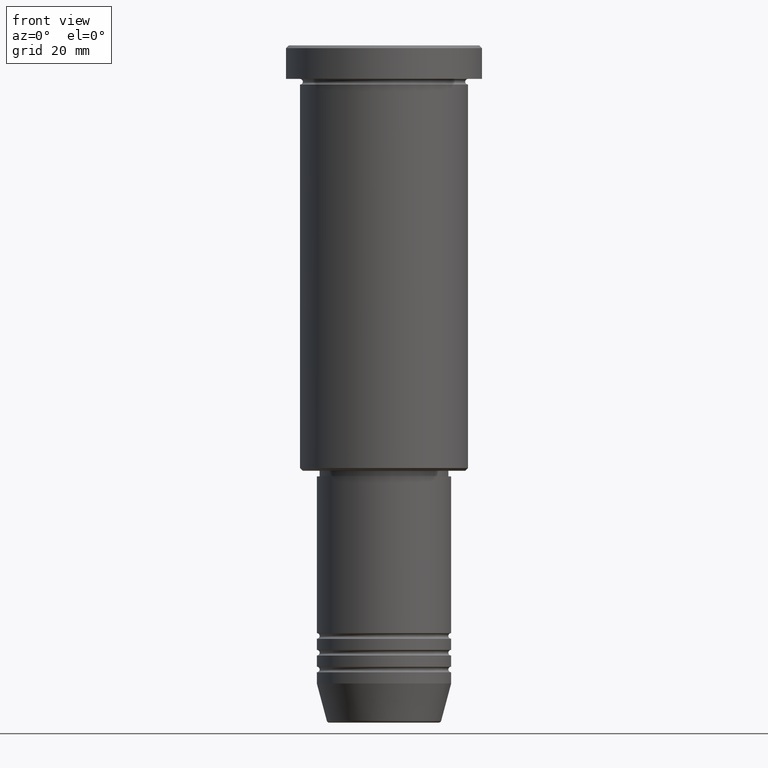
[diagram: clean part render]
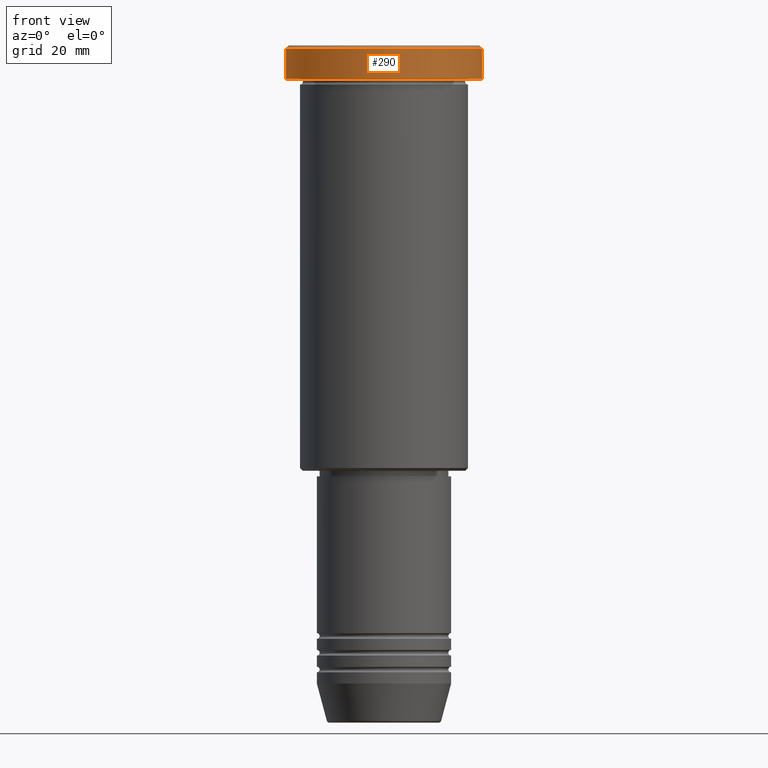
[diagram: same view with one face highlighted and labeled with its STEP entity id]
A machine part, front view. The second image highlights one B-rep face of the part: STEP entity #290.
In plain terms, the highlighted cylindrical surface (partial cylindrical patch) has radius 17.5 mm, axis along (-0, -0, 1).
Its self-contained STEP definition (entity closure, byte-faithful):
#61 = ORIENTED_EDGE ( 'NONE', *, *, #350, .T. ) ;
#64 = DIRECTION ( 'NONE',  ( -0.000000000000000000, -0.000000000000000000, 1.000000000000000000 ) ) ;
#72 = LINE ( 'NONE', #726, #657 ) ;
#95 = EDGE_CURVE ( 'NONE', #514, #590, #264, .T. ) ;
#114 = AXIS2_PLACEMENT_3D ( 'NONE', #405, #771, #1046 ) ;
#130 = CARTESIAN_POINT ( 'NONE',  ( -17.50000000000000000, 2.143131898507868248E-15, -5.999999999999995559 ) ) ;
#154 = CARTESIAN_POINT ( 'NONE',  ( 17.50000000000000000, 0.000000000000000000, -0.4999999999999864553 ) ) ;
#155 = CARTESIAN_POINT ( 'NONE',  ( 17.50000000000000000, 0.000000000000000000, 0.000000000000000000 ) ) ;
#224 = LINE ( 'NONE', #155, #594 ) ;
#264 = CIRCLE ( 'NONE', #1160, 17.50000000000000000 ) ;
#284 = ORIENTED_EDGE ( 'NONE', *, *, #934, .T. ) ;
#290 = ADVANCED_FACE ( 'NONE', ( #402 ), #300, .T. ) ;
#300 = CYLINDRICAL_SURFACE ( 'NONE', #988, 17.50000000000000000 ) ;
#337 = DIRECTION ( 'NONE',  ( 1.000000000000000000, 0.000000000000000000, 0.000000000000000000 ) ) ;
#350 = EDGE_CURVE ( 'NONE', #604, #632, #888, .T. ) ;
#402 = FACE_OUTER_BOUND ( 'NONE', #622, .T. ) ;
#405 = CARTESIAN_POINT ( 'NONE',  ( 0.000000000000000000, 0.000000000000000000, -0.4999999999999864553 ) ) ;
#483 = DIRECTION ( 'NONE',  ( 1.000000000000000000, 0.000000000000000000, 0.000000000000000000 ) ) ;
#500 = DIRECTION ( 'NONE',  ( -0.000000000000000000, -0.000000000000000000, 1.000000000000000000 ) ) ;
#514 = VERTEX_POINT ( 'NONE', #130 ) ;
#552 = ORIENTED_EDGE ( 'NONE', *, *, #95, .T. ) ;
#590 = VERTEX_POINT ( 'NONE', #1161 ) ;
#594 = VECTOR ( 'NONE', #64, 1000.000000000000000 ) ;
#604 = VERTEX_POINT ( 'NONE', #154 ) ;
#622 = EDGE_LOOP ( 'NONE', ( #1096, #552, #284, #61 ) ) ;
#632 = VERTEX_POINT ( 'NONE', #952 ) ;
#657 = VECTOR ( 'NONE', #1006, 1000.000000000000000 ) ;
#663 = CARTESIAN_POINT ( 'NONE',  ( 0.000000000000000000, 0.000000000000000000, 0.000000000000000000 ) ) ;
#726 = CARTESIAN_POINT ( 'NONE',  ( -17.50000000000000000, 2.143131898507868248E-15, 0.000000000000000000 ) ) ;
#771 = DIRECTION ( 'NONE',  ( 0.000000000000000000, 0.000000000000000000, -1.000000000000000000 ) ) ;
#825 = DIRECTION ( 'NONE',  ( -0.000000000000000000, -0.000000000000000000, 1.000000000000000000 ) ) ;
#888 = CIRCLE ( 'NONE', #114, 17.50000000000000000 ) ;
#934 = EDGE_CURVE ( 'NONE', #590, #604, #224, .T. ) ;
#952 = CARTESIAN_POINT ( 'NONE',  ( -17.50000000000000000, 2.143131898507868248E-15, -0.4999999999999864553 ) ) ;
#988 = AXIS2_PLACEMENT_3D ( 'NONE', #663, #825, #483 ) ;
#1006 = DIRECTION ( 'NONE',  ( -0.000000000000000000, -0.000000000000000000, 1.000000000000000000 ) ) ;
#1041 = EDGE_CURVE ( 'NONE', #514, #632, #72, .T. ) ;
#1046 = DIRECTION ( 'NONE',  ( 1.000000000000000000, 0.000000000000000000, 0.000000000000000000 ) ) ;
#1096 = ORIENTED_EDGE ( 'NONE', *, *, #1041, .F. ) ;
#1156 = CARTESIAN_POINT ( 'NONE',  ( 0.000000000000000000, 0.000000000000000000, -5.999999999999995559 ) ) ;
#1160 = AXIS2_PLACEMENT_3D ( 'NONE', #1156, #500, #337 ) ;
#1161 = CARTESIAN_POINT ( 'NONE',  ( 17.50000000000000000, 0.000000000000000000, -5.999999999999995559 ) ) ;